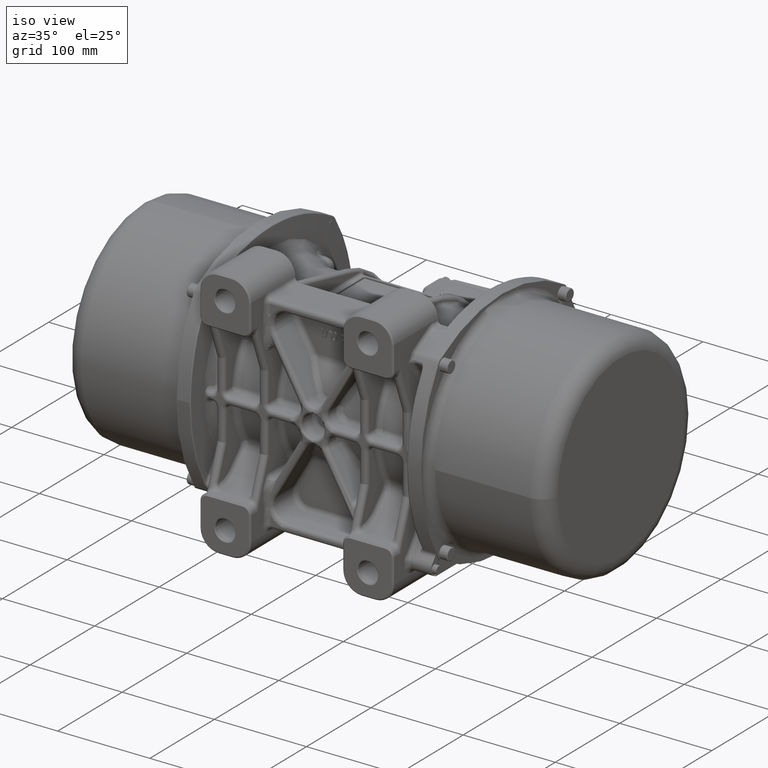
[diagram: clean part render]
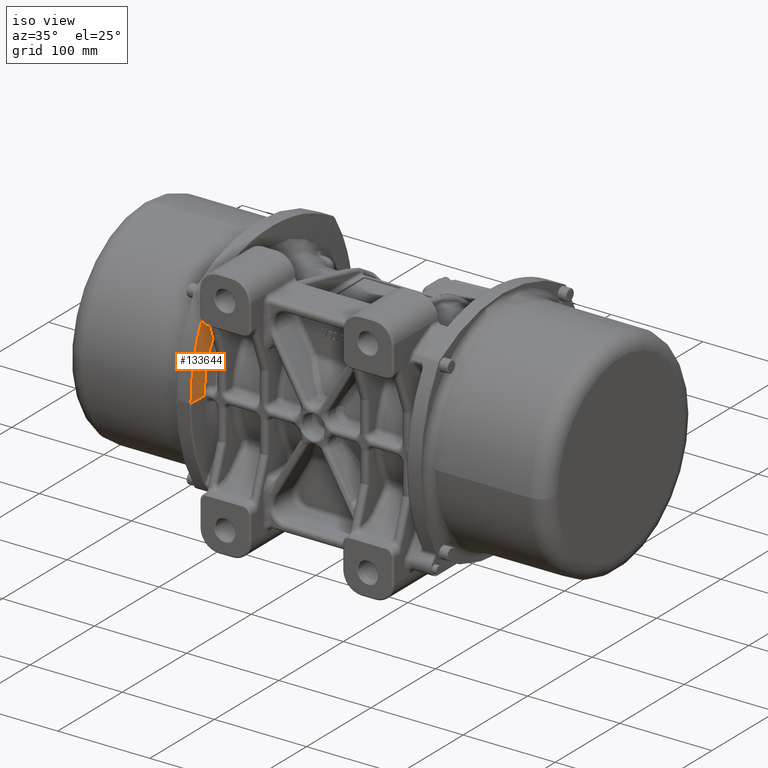
[diagram: same view with one face highlighted and labeled with its STEP entity id]
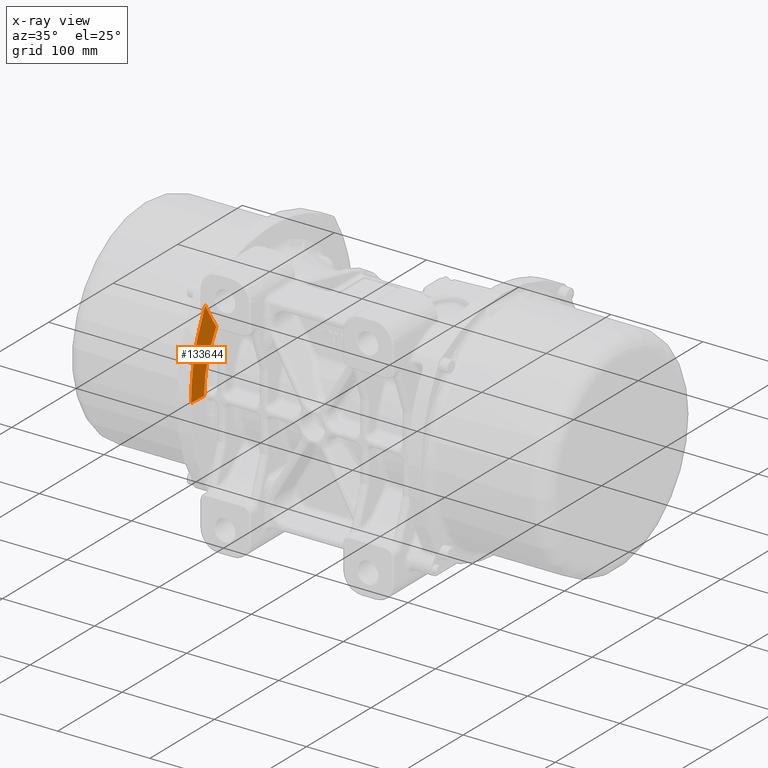
[diagram: x-ray of the same camera — body ghosted, the highlighted face saturated]
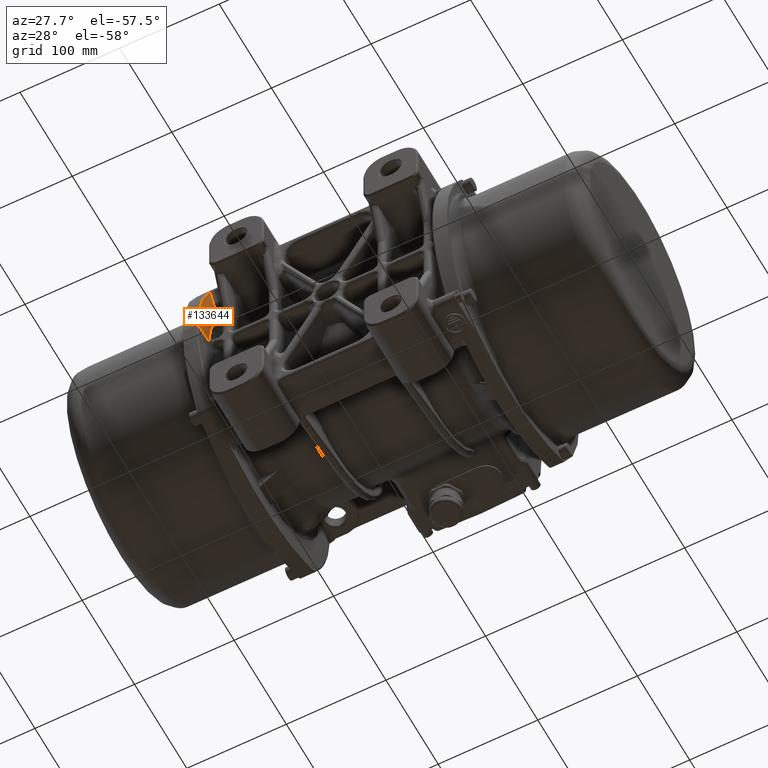
[diagram: same view with one face highlighted and labeled with its STEP entity id]
A machine part, iso view. The second image highlights one B-rep face of the part: STEP entity #133644.
The next image is the same camera in x-ray: the body ghosted, the highlighted face saturated — about 0% of this face is hidden behind the body in this view.
A second angle (auxiliary view) of the same face is appended — the face is thin or edge-on in the first view.
In plain terms, the highlighted conical surface has half-angle 87.5 deg.
Its self-contained STEP definition (entity closure, byte-faithful):
#2165 = CARTESIAN_POINT ( 'NONE',  ( -116.9572842229257500, -91.36961951978980800, 68.29120062349210200 ) ) ;
#5665 = EDGE_CURVE ( 'NONE', #63207, #17241, #109353, .T. ) ;
#6201 = DIRECTION ( 'NONE',  ( -0.04361938738623709300, -0.9990482215809451900, -1.870350827356057600E-017 ) ) ;
#7453 = CARTESIAN_POINT ( 'NONE',  ( -117.7034718990000100, -112.1428313320002100, 68.04775294400008100 ) ) ;
#10909 = CARTESIAN_POINT ( 'NONE',  ( -117.4080892134949200, -96.95922840690514000, 77.93183049961433500 ) ) ;
#11779 = CARTESIAN_POINT ( 'NONE',  ( -117.2484370889038000, -94.92745090460023500, 74.60908327834540900 ) ) ;
#13178 = CARTESIAN_POINT ( 'NONE',  ( -116.9225641361416600, -90.95903821963628400, 67.51102800980217500 ) ) ;
#14110 = CARTESIAN_POINT ( 'NONE',  ( -116.9723735504144000, -91.54915155048523400, 68.62797123081347200 ) ) ;
#14238 = CARTESIAN_POINT ( 'NONE',  ( -116.6257580500000000, -106.4765673520000000, 0.0000000000000000000 ) ) ;
#17241 = VERTEX_POINT ( 'NONE', #77730 ) ;
#18067 = CARTESIAN_POINT ( 'NONE',  ( -117.5982041040000200, -117.9724614960002200, 52.10397652400008200 ) ) ;
#18981 = CARTESIAN_POINT ( 'NONE',  ( -117.4670386680000000, -125.0731266270002400, 13.11968598200001800 ) ) ;
#21158 = ORIENTED_EDGE ( 'NONE', *, *, #86713, .F. ) ;
#22446 = CARTESIAN_POINT ( 'NONE',  ( -117.2371101130280900, -94.78526560063727400, 74.37007054974475300 ) ) ;
#22801 = FACE_OUTER_BOUND ( 'NONE', #31384, .T. ) ;
#23352 = CARTESIAN_POINT ( 'NONE',  ( -116.9215478684065200, -90.94705763249345400, 67.48811295470275700 ) ) ;
#24272 = CARTESIAN_POINT ( 'NONE',  ( -116.7962364154325300, -89.48551315795018000, 64.62837084870564300 ) ) ;
#24721 = CARTESIAN_POINT ( 'NONE',  ( -117.2261974252542000, -94.64852868980024400, 74.13938186263202100 ) ) ;
#25172 = CARTESIAN_POINT ( 'NONE',  ( -117.2258200896783100, -94.64380497327374500, 74.13139783652539400 ) ) ;
#29971 = CARTESIAN_POINT ( 'NONE',  ( -117.8631236014593900, -103.1022210657715900, 86.86501677405840400 ) ) ;
#31123 = CONICAL_SURFACE ( 'NONE', #46710, 134.9869526187647800, 1.527163095474116200 ) ;
#31384 = EDGE_LOOP ( 'NONE', ( #21158, #48548, #72354, #37099 ) ) ;
#35257 = CARTESIAN_POINT ( 'NONE',  ( -117.0722950440864200, -92.74957553066605000, 70.83474370106678500 ) ) ;
#37099 = ORIENTED_EDGE ( 'NONE', *, *, #125309, .F. ) ;
#39655 = CARTESIAN_POINT ( 'NONE',  ( -117.4604249624327800, -125.4270825614035500, 7.476966484489802900 ) ) ;
#43561 = CARTESIAN_POINT ( 'NONE',  ( -117.2272074536678600, -94.66117421108590700, 74.16075067909834200 ) ) ;
#44918 = CARTESIAN_POINT ( 'NONE',  ( -116.9208698368936300, -90.93906526340636300, 67.47282278855689700 ) ) ;
#46275 = CARTESIAN_POINT ( 'NONE',  ( -116.9249299682434200, -90.98693708832115600, 67.56435515363541800 ) ) ;
#46710 = AXIS2_PLACEMENT_3D ( 'NONE', #96863, #127108, #96412 ) ;
#48548 = ORIENTED_EDGE ( 'NONE', *, *, #107193, .T. ) ;
#49734 = CARTESIAN_POINT ( 'NONE',  ( -117.4765232850000000, -124.5649111530002200, 18.80706309800002900 ) ) ;
#51079 = CARTESIAN_POINT ( 'NONE',  ( -117.7164966750000000, -111.4147684340002100, 69.79698750300009600 ) ) ;
#53243 = VECTOR ( 'NONE', #6201, 1000.000000000000000 ) ;
#54546 = CARTESIAN_POINT ( 'NONE',  ( -117.1025423320789800, -93.11867154406112900, 71.49158235958253700 ) ) ;
#55456 = CARTESIAN_POINT ( 'NONE',  ( -116.9389717988196800, -91.15275866902470600, 67.88036597577468000 ) ) ;
#55947 = AXIS2_PLACEMENT_3D ( 'NONE', #79613, #121780, #100295 ) ;
#59814 = CARTESIAN_POINT ( 'NONE',  ( -117.5291916310000000, -121.7324030450002300, 37.53708435800006500 ) ) ;
#59917 = CARTESIAN_POINT ( 'NONE',  ( -117.4582435207052100, -125.5436193993561900, 4.464202445209065300E-015 ) ) ;
#63207 = VERTEX_POINT ( 'NONE', #129755 ) ;
#64160 = CARTESIAN_POINT ( 'NONE',  ( -117.2711220427482200, -95.21299655196546000, 75.08643986498263700 ) ) ;
#64617 = CARTESIAN_POINT ( 'NONE',  ( -117.5929192581679100, -99.37559688426591700, 81.67540876145099600 ) ) ;
#65070 = CARTESIAN_POINT ( 'NONE',  ( -116.6257580500000000, -87.56330685707240500, 60.57991983501519700 ) ) ;
#66430 = CARTESIAN_POINT ( 'NONE',  ( -116.6580200050154300, -87.92111590951886100, 61.36147828251900900 ) ) ;
#70316 = CARTESIAN_POINT ( 'NONE',  ( -117.6407428399999900, -115.6382122850002200, 59.26135112300006100 ) ) ;
#71227 = CARTESIAN_POINT ( 'NONE',  ( -117.4804419150000000, -124.3547120790002500, 20.70322521400002800 ) ) ;
#72354 = ORIENTED_EDGE ( 'NONE', *, *, #5665, .F. ) ;
#76024 = CARTESIAN_POINT ( 'NONE',  ( -117.0202114083710400, -92.12129517741156800, 69.68957750221697700 ) ) ;
#76430 = CIRCLE ( 'NONE', #55947, 106.4765673525376000 ) ;
#77730 = CARTESIAN_POINT ( 'NONE',  ( -116.6257580500000000, -87.56330685707240500, 60.57991983501519700 ) ) ;
#79187 = CARTESIAN_POINT ( 'NONE',  ( -117.8705483540000500, -134.9869526174822200, -3.584776488092679300E-029 ) ) ;
#79613 = CARTESIAN_POINT ( 'NONE',  ( -116.6257580500000000, 7.814651703519359700E-010, 0.0000000000000000000 ) ) ;
#80905 = CARTESIAN_POINT ( 'NONE',  ( -117.8312269720000200, -104.9331226630002200, 83.55801785500013100 ) ) ;
#81811 = CARTESIAN_POINT ( 'NONE',  ( -117.4582435207052100, -125.5436193993561900, 4.464202445209065300E-015 ) ) ;
#85714 = CARTESIAN_POINT ( 'NONE',  ( -117.2265004246453400, -94.65232200231193400, 74.14579270424783900 ) ) ;
#86713 = EDGE_CURVE ( 'NONE', #132108, #131289, #117140, .T. ) ;
#88014 = CARTESIAN_POINT ( 'NONE',  ( -116.6984007827965300, -88.37236842109858500, 62.33027820734459800 ) ) ;
#91464 = CARTESIAN_POINT ( 'NONE',  ( -117.8007866040000000, -106.6655250450001900, 80.18246912800009300 ) ) ;
#92364 = CARTESIAN_POINT ( 'NONE',  ( -117.7574850920000000, -109.1125439600002100, 75.01361937400008600 ) ) ;
#93279 = CARTESIAN_POINT ( 'NONE',  ( -117.4582435039862000, -125.5436216018090600, 3.734585915363491700 ) ) ;
#95802 = CARTESIAN_POINT ( 'NONE',  ( -117.2314504793360600, -94.71431955787657800, 74.25048017224776200 ) ) ;
#96412 = DIRECTION ( 'NONE',  ( 1.130892007889791300E-015, -1.000000000000000000, 0.0000000000000000000 ) ) ;
#96716 = CARTESIAN_POINT ( 'NONE',  ( -117.0017323315379700, -91.89945206150069600, 69.28119049740459400 ) ) ;
#96863 = CARTESIAN_POINT ( 'NONE',  ( -117.8705483540001900, 1.282550454728691900E-009, -3.584776488092679300E-029 ) ) ;
#97170 = CARTESIAN_POINT ( 'NONE',  ( -116.9204507708658800, -90.93412607710861600, 67.46337122384262800 ) ) ;
#98099 = CARTESIAN_POINT ( 'NONE',  ( -117.1794208258718400, -94.06260793365663600, 73.15057914624777900 ) ) ;
#100295 = DIRECTION ( 'NONE',  ( 0.0000000000000000000, 0.0000000000000000000, 1.000000000000000000 ) ) ;
#105902 = CARTESIAN_POINT ( 'NONE',  ( -117.7543553454656300, -101.5766726793086400, 84.80950036755329800 ) ) ;
#106332 = CARTESIAN_POINT ( 'NONE',  ( -117.2286216334265000, -94.67888321356935000, 74.19066400648445400 ) ) ;
#107193 = EDGE_CURVE ( 'NONE', #132108, #17241, #76430, .T. ) ;
#108604 = CARTESIAN_POINT ( 'NONE',  ( -116.8536963319934500, -90.14741156085825900, 65.95766026786586200 ) ) ;
#109353 = B_SPLINE_CURVE_WITH_KNOTS ( 'NONE', 3,
 ( #116855, #105902, #64617, #10909, #116406, #64160, #11779, #22446, #95802, #106332, #43561, #85714, #24721, #129218, #25172, #119128, #98099, #54546, #35257, #76024, #96716, #14110, #2165, #55456, #128773, #46275, #13178, #23352, #44918, #97170, #108604, #24272, #88014, #66430, #65070 ),
 .UNSPECIFIED., .F., .F.,
 ( 4, 1, 1, 1, 1, 1, 1, 1, 1, 1, 1, 2, 2, 2, 2, 2, 1, 1, 1, 1, 1, 2, 2, 2, 4 ),
 ( 0.0000000000000000000, 0.2499999999988269400, 0.3749999999982404100, 0.4374999999979465900, 0.4687499999978005900, 0.4843749999977274300, 0.4921874999976905700, 0.4960937499976725300, 0.4980468749976631500, 0.4990234374976584300, 0.4995117187476559900, 0.4997558593726544300, 0.4999999999976528200, 0.6249999999983985000, 0.6874999999987703200, 0.7187499999989566100, 0.7343749999990496500, 0.7421874999990966100, 0.7460937499991203700, 0.7480468749991323600, 0.7490234374991380200, 0.7495117187491404700, 0.7499999999991428000, 0.8749999999995711200, 1.000000000000000000 ),
 .UNSPECIFIED. ) ;
#113411 = CARTESIAN_POINT ( 'NONE',  ( -117.5027184600000000, -123.1581456630002400, 30.12758073300003800 ) ) ;
#116406 = CARTESIAN_POINT ( 'NONE',  ( -117.3166155910949000, -95.78879377251348600, 76.03847871912485300 ) ) ;
#116855 = CARTESIAN_POINT ( 'NONE',  ( -117.8631236014593900, -103.1022210657715900, 86.86501677405840400 ) ) ;
#117140 = LINE ( 'NONE', #79187, #53243 ) ;
#119128 = CARTESIAN_POINT ( 'NONE',  ( -117.2121468635776900, -94.47264180264950500, 73.84207545786219400 ) ) ;
#121780 = DIRECTION ( 'NONE',  ( -1.000000000000000000, 0.0000000000000000000, 0.0000000000000000000 ) ) ;
#123512 = CARTESIAN_POINT ( 'NONE',  ( -117.7434969879999900, -109.8999799690002000, 73.27917321500008500 ) ) ;
#125309 = EDGE_CURVE ( 'NONE', #131289, #63207, #134335, .T. ) ;
#127108 = DIRECTION ( 'NONE',  ( -1.000000000000000000, -1.166819099940931900E-015, -4.287888802276360400E-016 ) ) ;
#128773 = CARTESIAN_POINT ( 'NONE',  ( -116.9296397750918700, -91.04251093477687100, 67.67044449429413100 ) ) ;
#129218 = CARTESIAN_POINT ( 'NONE',  ( -117.2259954285600000, -94.64599992395929500, 74.13510790578422400 ) ) ;
#129755 = CARTESIAN_POINT ( 'NONE',  ( -117.8631236014593900, -103.1022210657715900, 86.86501677405840400 ) ) ;
#131289 = VERTEX_POINT ( 'NONE', #59917 ) ;
#132108 = VERTEX_POINT ( 'NONE', #14238 ) ;
#133593 = CARTESIAN_POINT ( 'NONE',  ( -117.4698206680000000, -124.9241709250002400, 15.01411182400002200 ) ) ;
#133644 = ADVANCED_FACE ( 'NONE', ( #22801 ), #31123, .T. ) ;
#134335 = B_SPLINE_CURVE_WITH_KNOTS ( 'NONE', 3,
 ( #81811, #93279, #39655, #18981, #133593, #49734, #71227, #113411, #59814, #18067, #70316, #7453, #51079, #123512, #92364, #91464, #80905, #29971 ),
 .UNSPECIFIED., .F., .F.,
 ( 4, 2, 2, 2, 2, 2, 2, 2, 4 ),
 ( 0.0000000000000000000, 0.1240020953968919600, 0.1865733742971144600, 0.2491446531973372800, 0.4994297687982216500, 0.7497148843991111600, 0.8122861632993329000, 0.8748574421995556300, 1.000000000000000000 ),
 .UNSPECIFIED. ) ;